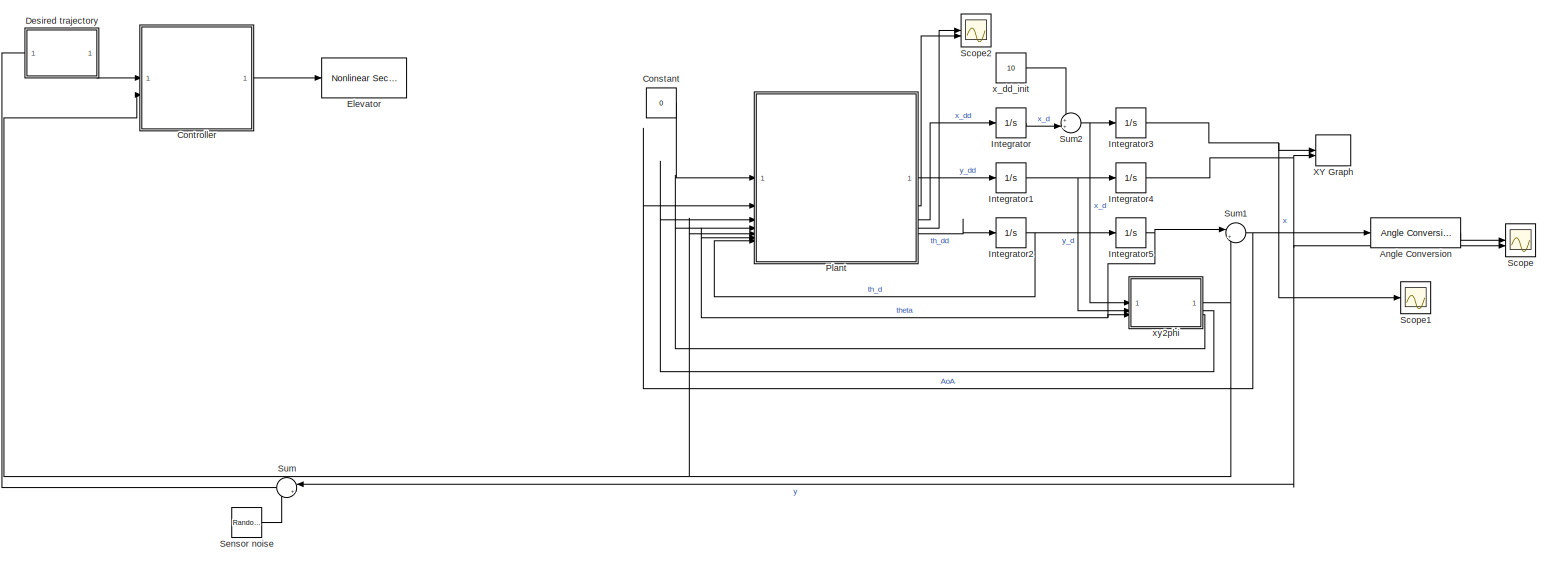
[diagram: root canvas - part 1/1, most of the canvas]
MODEL slx_351cd52d1a81
KIND model
CONFIG AbsTol = auto
CONFIG EnableMultiTasking = off
CONFIG FixedStep = 0.01
CONFIG MaxStep = auto
CONFIG MinStep = auto
CONFIG RelTol = 1e-3
CONFIG SampleTimeConstraint = Unconstrained
CONFIG SolverName = VariableStepAuto
CONFIG StartTime = 0.0
CONFIG StopTime = 10
BLOCK [Reference] Angle Conversion  REF=aerolibconvert2/Angle Conversion
  SourceBlock = aerolibconvert2/Angle Conversion
  SourceType = Angle Conversion
BLOCK [Constant] Constant
  Value = 0
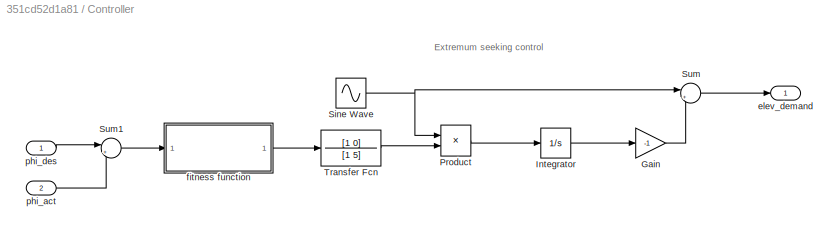
BLOCK [SubSystem] Controller
BLOCK [Gain] Controller/Gain
  Gain = -1
BLOCK [Integrator] Controller/Integrator
BLOCK [Product] Controller/Product
BLOCK [Sin] Controller/Sine Wave
  SampleTime = 0
BLOCK [Sum] Controller/Sum
  Inputs = |++
BLOCK [Sum] Controller/Sum1
  Inputs = |+-
BLOCK [TransferFcn] Controller/Transfer Fcn
  Denominator = [1 5]
  Numerator = [1 0]
BLOCK [Outport] Controller/elev_demand
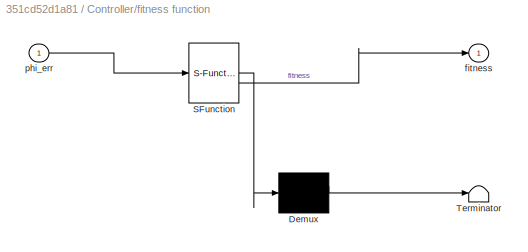
BLOCK [SubSystem] Controller/fitness function
  ErrorFcn = Stateflow.Translate.translate
  PermitHierarchicalResolution = ExplicitOnly
  SFBlockType = MATLAB Function
  TreatAsAtomicUnit = on
BLOCK [Demux] Controller/fitness function/ Demux 
  Outputs = 1
BLOCK [S-Function] Controller/fitness function/ SFunction 
  EnableBusSupport = on
  FunctionName = sf_sfun
  PortCounts = [1 2]
  SFcnIsStateOwnerBlock = off
  SFunctionDeploymentMode = off
  Tag = Stateflow S-Function 4
BLOCK [Terminator] Controller/fitness function/ Terminator 
BLOCK [Outport] Controller/fitness function/fitness
BLOCK [Inport] Controller/fitness function/phi_err
BLOCK [Inport] Controller/phi_act
  Port = 2
BLOCK [Inport] Controller/phi_des
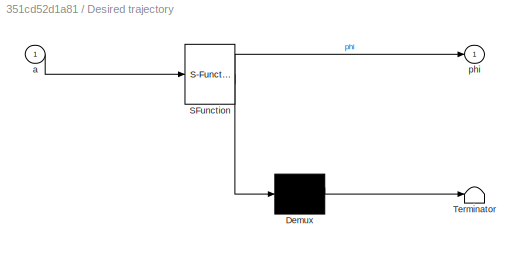
BLOCK [SubSystem] Desired trajectory
  ErrorFcn = Stateflow.Translate.translate
  PermitHierarchicalResolution = ExplicitOnly
  SFBlockType = MATLAB Function
  TreatAsAtomicUnit = on
BLOCK [Demux] Desired trajectory/ Demux 
  Outputs = 1
BLOCK [S-Function] Desired trajectory/ SFunction 
  EnableBusSupport = on
  FunctionName = sf_sfun
  PortCounts = [1 2]
  SFcnIsStateOwnerBlock = off
  SFunctionDeploymentMode = off
  Tag = Stateflow S-Function 3
BLOCK [Terminator] Desired trajectory/ Terminator 
BLOCK [Inport] Desired trajectory/a
BLOCK [Outport] Desired trajectory/phi
BLOCK [Reference] Elevator  REF=aerolibactuator/Nonlinear Second-Order Actuator
  SourceBlock = aerolibactuator/Nonlinear Second-Order Actuator
  SourceType = NonlinearSecondOrderActuator
BLOCK [Integrator] Integrator
BLOCK [Integrator] Integrator1
BLOCK [Integrator] Integrator2
BLOCK [Integrator] Integrator3
BLOCK [Integrator] Integrator4
BLOCK [Integrator] Integrator5
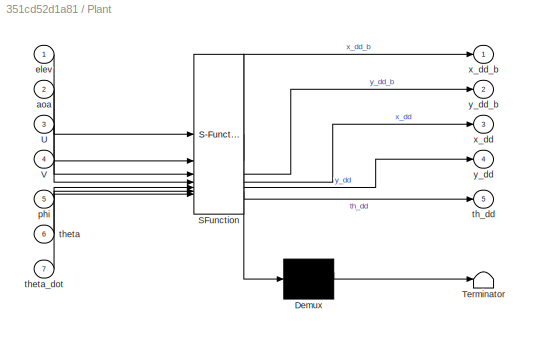
BLOCK [SubSystem] Plant
  ErrorFcn = Stateflow.Translate.translate
  PermitHierarchicalResolution = ExplicitOnly
  SFBlockType = MATLAB Function
  TreatAsAtomicUnit = on
BLOCK [Demux] Plant/ Demux 
  Outputs = 1
BLOCK [S-Function] Plant/ SFunction 
  EnableBusSupport = on
  FunctionName = sf_sfun
  PortCounts = [7 6]
  SFcnIsStateOwnerBlock = off
  SFunctionDeploymentMode = off
  Tag = Stateflow S-Function 1
BLOCK [Terminator] Plant/ Terminator 
BLOCK [Inport] Plant/U
  Port = 3
BLOCK [Inport] Plant/V
  Port = 4
BLOCK [Inport] Plant/aoa
  Port = 2
BLOCK [Inport] Plant/elev
BLOCK [Inport] Plant/phi
  Port = 5
BLOCK [Outport] Plant/th_dd
  Port = 5
BLOCK [Inport] Plant/theta
  Port = 6
BLOCK [Inport] Plant/theta_dot
  Port = 7
BLOCK [Outport] Plant/x_dd
  Port = 3
BLOCK [Outport] Plant/x_dd_b
BLOCK [Outport] Plant/y_dd
  Port = 4
BLOCK [Outport] Plant/y_dd_b
  Port = 2
BLOCK [Scope] Scope
  Floating = off
  NumInputPorts = 2
  ScopeSpecificationString = Simulink.scopes.TimeScopeBlockCfg('CurrentConfiguration', extmgr.ConfigurationSet(extmgr.Configuration('Core','General UI',true),extmgr.Configuration('Core','Source UI',true),extmgr.Configuration('Sources','WiredSimulink',true),extmgr.Configuration('Visuals','Time Domain',true,'SerializedDisplays',{struct('MinYLimReal','-10.38572','MaxYLimReal','33.84573','YLabelReal','','MinYLimMag','0.00000','Ma...<+1417ch>
BLOCK [Scope] Scope1
  Floating = off
  NumInputPorts = 1
  ScopeSpecificationString = Simulink.scopes.TimeScopeBlockCfg('CurrentConfiguration', extmgr.ConfigurationSet(extmgr.Configuration('Core','General UI',true),extmgr.Configuration('Core','Source UI',true),extmgr.Configuration('Sources','WiredSimulink',true,'DataLoggingVariableName','ScopeData1'),extmgr.Configuration('Visuals','Time Domain',true,'SerializedDisplays',{struct('MinYLimReal','44.93652','MaxYLimReal','109.26334','YL...<+1389ch>
BLOCK [Scope] Scope2
  Floating = off
  NumInputPorts = 2
  ScopeSpecificationString = Simulink.scopes.TimeScopeBlockCfg('CurrentConfiguration', extmgr.ConfigurationSet(extmgr.Configuration('Core','General UI',true),extmgr.Configuration('Core','Source UI',true),extmgr.Configuration('Sources','WiredSimulink',true,'DataLoggingVariableName','ScopeData2'),extmgr.Configuration('Visuals','Time Domain',true,'SerializedDisplays',{struct('MinYLimReal','-40.69564','MaxYLimReal','41.24384','YL...<+1467ch>
BLOCK [RandomNumber] Sensor noise
  SampleTime = 0.1
  Variance = 0.25
BLOCK [Sum] Sum
  Inputs = |++
BLOCK [Sum] Sum1
  Inputs = |+-
BLOCK [Sum] Sum2
  Inputs = ++|
BLOCK [Record] XY Graph
  CompatibilityTag = XY
  FileSettingsInternal = {"entries":[{"content":{"excelSettings":{"content":{},"type":"Streamout.ExcelSettings"}},"type":"Streamout.FileSettingStorage","uuid":""}],"packageUris":["http:\/\/schema.mathworks.com\/mf0\/streamout_blocks\/R2020a"],"version":"1.0"}
  Layout = [1 1]
  SignalsInternal = {"entries":[{"content":{"signals":[{"content":{"blockPath":[],"dimensions":[1],"domain":"","lineColor":"#a2142f","plots":[1],"port":1,"sid":[""],"signalID":391,"signalName":"x"},"type":"RecordBlkView.Signal","uuid":""},{"content":{"blockPath":[],"dimensions":[1],"domain":"","lineColor":"#139fff","plots":[1],"port":2,"sid":[""],"signalID":395,"signalName":"y"},"type":"RecordBlkView.Signal","uuid":"...<+148ch>
  VisualizationBindings = {"xyplotplugin":{"info":[{"series":[{"bindingParametersList":[{"parameter":"X-Axis","signalID":391,"signalName":"x"},{"parameter":"Y-Axis","signalID":395,"signalName":"y"}],"seriesID":51392}],"subplotID":1}]}}
BLOCK [Constant] x_dd_init
  Value = 10
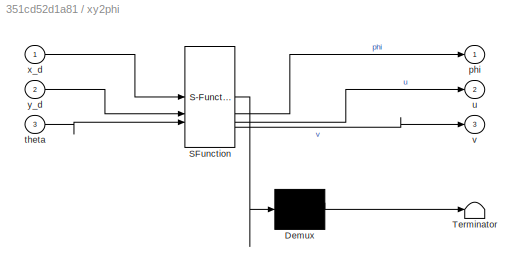
BLOCK [SubSystem] xy2phi
  ErrorFcn = Stateflow.Translate.translate
  PermitHierarchicalResolution = ExplicitOnly
  SFBlockType = MATLAB Function
  TreatAsAtomicUnit = on
BLOCK [Demux] xy2phi/ Demux 
  Outputs = 1
BLOCK [S-Function] xy2phi/ SFunction 
  EnableBusSupport = on
  FunctionName = sf_sfun
  PortCounts = [3 4]
  SFcnIsStateOwnerBlock = off
  SFunctionDeploymentMode = off
  Tag = Stateflow S-Function 2
BLOCK [Terminator] xy2phi/ Terminator 
BLOCK [Outport] xy2phi/phi
BLOCK [Inport] xy2phi/theta
  Port = 3
BLOCK [Outport] xy2phi/u
  Port = 2
BLOCK [Outport] xy2phi/v
  Port = 3
BLOCK [Inport] xy2phi/x_d
BLOCK [Inport] xy2phi/y_d
  Port = 2
ANNOTATION Controller: Extremum seeking control
LINE Angle Conversion:1 -> Scope:1
LINE Constant:1 -> Plant:1
LINE Controller/Gain:1 -> Controller/Sum:2
LINE Controller/Integrator:1 -> Controller/Gain:1
LINE Controller/Product:1 -> Controller/Integrator:1
NET Controller/Sine Wave:1 -> Controller/Product:1, Controller/Sum:1
LINE Controller/Sum1:1 -> Controller/fitness function:1
LINE Controller/Sum:1 -> Controller/elev_demand:1
LINE Controller/Transfer Fcn:1 -> Controller/Product:2
LINE Controller/fitness function:1 -> Controller/Transfer Fcn:1
LINE Controller/phi_act:1 -> Controller/Sum1:2
LINE Controller/phi_des:1 -> Controller/Sum1:1
LINE Controller:1 -> Elevator:1
LINE Desired trajectory:1 -> Controller:1
NET Integrator1:1 -> Integrator4:1, xy2phi:2
NET Integrator2:1 -> Integrator5:1, Plant:7
NET Integrator3:1 -> Scope1:1, XY Graph:1
NET Integrator4:1 -> Scope:2, Sum:1, XY Graph:2
NET Integrator5:1 -> Plant:6, Sum1:1, xy2phi:3
LINE Integrator:1 -> Sum2:2
LINE Plant:1 -> Scope2:1
LINE Plant:2 -> Scope2:2
LINE Plant:3 -> Integrator:1
LINE Plant:4 -> Integrator1:1
LINE Plant:5 -> Integrator2:1
LINE Sensor noise:1 -> Sum:2
NET Sum1:1 -> Angle Conversion:1, Plant:2
NET Sum2:1 -> Integrator3:1, xy2phi:1
LINE Sum:1 -> Desired trajectory:1
LINE x_dd_init:1 -> Sum2:1
NET xy2phi:1 -> Controller:2, Plant:5, Sum1:2
LINE xy2phi:2 -> Plant:3
LINE xy2phi:3 -> Plant:4
note: NET lines group one-source signal fan-out (src -> all destinations, sorted); 1:1 wires keep LINE
CHART Plant states=1 transitions=1
  STATE_LABEL 'eML_blk_kernel()'
  STATE_LABEL 'SCRIPT:\nfunction [x_dd_b,y_dd_b,x_dd,y_dd,th_dd] = fcn(elev,aoa,U,V,phi,theta,theta_dot)\n\nb = 1; %wingspan (m)\nb_tail = 0.3; %tailspan\nAR = 5; %aspect ratio\nAR_tail = 3; %tail aspect ratio\nI = 1; %moment of inertia (kg-m^2)\nrho = 1.225; %air density (kg/m^3)\noswald = 0.9; %Oswald efficiency ratio\ncamber_number = 2; %NACA 4 digit airfoil camber amount number (used for lift coefficient approximation...<+1472ch>'
CHART xy2phi states=1 transitions=1
  STATE_LABEL 'eML_blk_kernel()'
  STATE_LABEL 'SCRIPT:\nfunction [phi,u,v] = fcn(x_d,y_d,theta)\n\nphi = atan2(y_d,x_d);\nu = x_d*cos(theta)+y_d*sin(theta);\nv = y_d*cos(theta)-x_d*sin(theta);\n\n'
CHART Desired trajectory states=1 transitions=1
  STATE_LABEL 'eML_blk_kernel()'
  STATE_LABEL 'SCRIPT:\nfunction phi = fcn(a) %a is altitude, theta is velocity angle\n\n%r = 100; %turn radius in meters\n\nphi = 0;\n'
CHART Controller/fitness function states=1 transitions=1
  STATE_LABEL 'eML_blk_kernel()'
  STATE_LABEL 'SCRIPT:\nfunction fitness = fcn(phi_err)\n\n%we want to minimize the fitness function\nA = 1;\nfitness = A*phi_err^2;\n'
CHART  states=0 transitions=0
CHART  states=0 transitions=0
CHART  states=0 transitions=0
CHART  states=0 transitions=0
